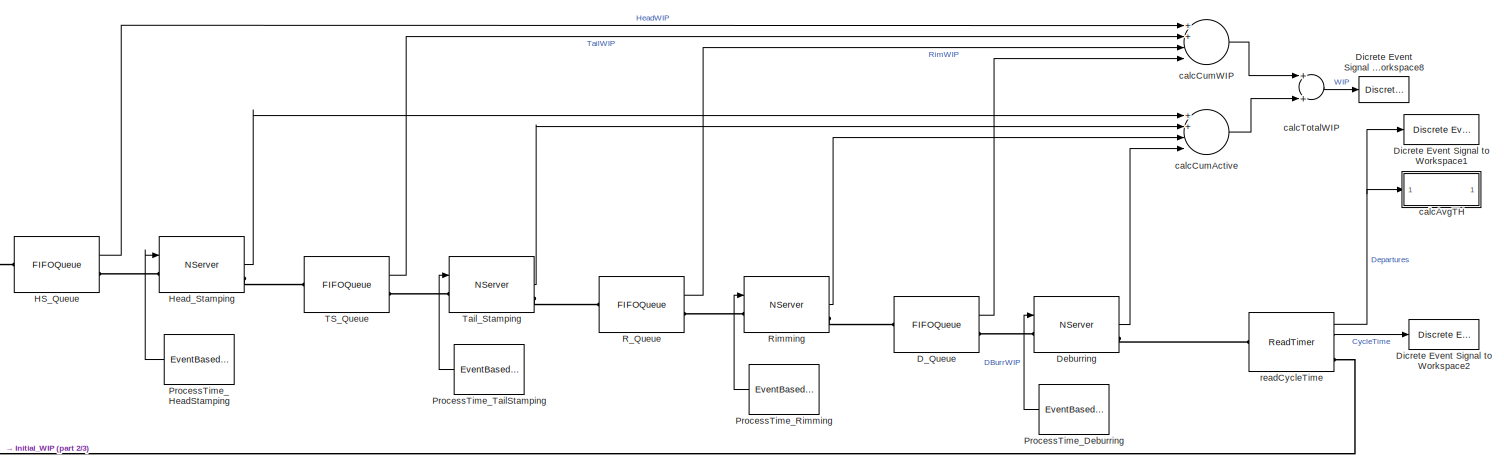
[diagram: root canvas - part 1/3, most of the canvas]
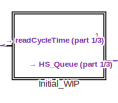
[diagram: root canvas - part 2/3, middle left region]
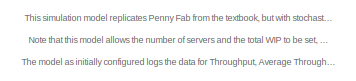
[diagram: root canvas - part 3/3, bottom left region]
MODEL slx_191b45a210a1
KIND model
CONFIG AbsTol = auto
CONFIG FixedStep = auto
CONFIG InitFcn = warning('off','all');
CONFIG MaxStep = auto
CONFIG MinStep = auto
CONFIG PostLoadFcn = set_param(gcs, 'Location', [75 0 1300 1000]);
CONFIG RelTol = 1e-3
CONFIG SampleTimeConstraint = Unconstrained
CONFIG Solver = VariableStepDiscrete
CONFIG SolverMode = Auto
CONFIG SolverName = VariableStepDiscrete
CONFIG StartFcn = warning('off','all');
CONFIG StartTime = 0.0
CONFIG StopTime = 10000
BLOCK [FIFOQueue] D_Queue
  Capacity = Inf
  OutputPortMap = o1
  Ports = [0, 1, 0, 0, 0, 1, 1]
  StatNumberInBlock = on
BLOCK [NServer] Deburring
  InputPortMap = u0
  NumberOfServers = 2
  OutputPortMap = o0,o1
  Ports = [1, 2, 0, 0, 0, 1, 1]
  ServiceTime = 2
  ServiceTimeFrom = Signal port t
  StatNumberDeparted = on
  StatNumberInBlock = on
BLOCK [Reference] Dicrete Event Signal to Workspace1  REF=simeventslib/SimEvents
Sinks/Discrete Event Signal
to Workspace
  Decimation = 1
  MaxDataPoints = inf
  Ports = [1]
  SaveFormat = Structure With Time
  SourceBlock = simeventslib/SimEvents\nSinks/Discrete Event Signal\nto Workspace
  SourceType = Discrete Event Signal to Workspace
  VariableName = Departures
  isMonitorOnly = off
  isRecordIC = off
BLOCK [Reference] Dicrete Event Signal to Workspace2  REF=simeventslib/SimEvents
Sinks/Discrete Event Signal
to Workspace
  Decimation = 1
  MaxDataPoints = inf
  Ports = [1]
  SaveFormat = Structure With Time
  SourceBlock = simeventslib/SimEvents\nSinks/Discrete Event Signal\nto Workspace
  SourceType = Discrete Event Signal to Workspace
  VariableName = CycleTime
  isMonitorOnly = off
  isRecordIC = off
BLOCK [Reference] Dicrete Event Signal to Workspace8  REF=simeventslib/SimEvents
Sinks/Discrete Event Signal
to Workspace
  Decimation = 1
  MaxDataPoints = inf
  Ports = [1]
  SaveFormat = Structure With Time
  SourceBlock = simeventslib/SimEvents\nSinks/Discrete Event Signal\nto Workspace
  SourceType = Discrete Event Signal to Workspace
  VariableName = WIP
  isMonitorOnly = off
  isRecordIC = off
BLOCK [FIFOQueue] HS_Queue
  Capacity = Inf
  OutputPortMap = o1
  Ports = [0, 1, 0, 0, 0, 1, 1]
  StatNumberInBlock = on
BLOCK [NServer] Head_Stamping
  InputPortMap = u0
  NumberOfServers = 1
  OutputPortMap = o0,o1
  Ports = [1, 2, 0, 0, 0, 1, 1]
  ServiceChange = Force complete
  ServiceTimeFrom = Signal port t
  StatNumberDeparted = on
  StatNumberInBlock = on
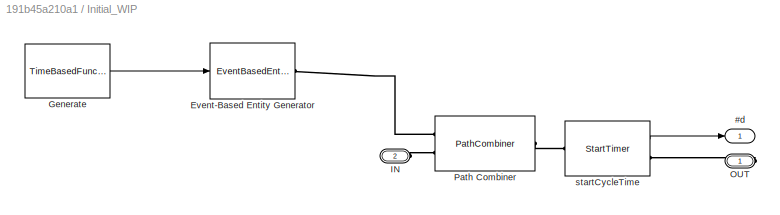
BLOCK [SubSystem] Initial_WIP
  Ports = [0, 1, 0, 0, 0, 1, 1]
  RequestExecContextInheritance = off
BLOCK [Outport] Initial_WIP/#d
  IconDisplay = Port number
BLOCK [EventBasedEntityGenerator] Initial_WIP/Event-Based Entity Generator
  GenerateEntitiesUpon = Function call from port fcn
  InputPortMap = u0
  Ports = [1, 0, 0, 0, 0, 0, 1]
BLOCK [TimeBasedFunctionCallGenerator] Initial_WIP/Generate
  EventGenerationMode = Only at simulation start
  NumberOfEventsPerPeriod = NumberOfEventsPerPeriod
  OutputPortMap = o0
  Ports = [0, 1]
BLOCK [PMIOPort] Initial_WIP/IN
  Port = 2
  Side = Left
BLOCK [PMIOPort] Initial_WIP/OUT
  Port = 1
  Side = Right
BLOCK [PathCombiner] Initial_WIP/Path Combiner
  NumberInputPorts = 2
  Ports = [0, 0, 0, 0, 0, 2, 1]
BLOCK [StartTimer] Initial_WIP/startCycleTime
  OutputPortMap = o0
  Ports = [0, 1, 0, 0, 0, 1, 1]
  StatNumberDeparted = on
  TimerStartedOption = Restart
  TimerTag = CycleTime
BLOCK [EventBasedRandomNumber] ProcessTime_Deburring
  OutputPortMap = o0
  Ports = [0, 1]
  Seed = 11082
  maxTri = 5.5
  meanExp = 3
  meanNorm = 3
  minTri = .5
  modeTri = 3
  stdNorm = 3
BLOCK [EventBasedRandomNumber] ProcessTime_HeadStamping
  OutputPortMap = o0
  Ports = [0, 1]
  Seed = 14299
  maxTri = 4.75
  meanExp = 2
  meanNorm = 2
  minTri = .25
  modeTri = 1
  stdNorm = .33
BLOCK [EventBasedRandomNumber] ProcessTime_Rimming
  OutputPortMap = o0
  Ports = [0, 1]
  Seed = 17516
  maxTri = 13
  meanExp = 10
  meanNorm = 10
  minTri = 7
  modeTri = 10
  stdNorm = 10
BLOCK [EventBasedRandomNumber] ProcessTime_TailStamping
  OutputPortMap = o0
  Ports = [0, 1]
  Seed = 20733
  maxTri = 8
  meanExp = 5
  meanNorm = 5
  minTri = 2
  modeTri = 5
  stdNorm = 5
BLOCK [FIFOQueue] R_Queue
  Capacity = Inf
  OutputPortMap = o1
  Ports = [0, 1, 0, 0, 0, 1, 1]
  StatNumberInBlock = on
BLOCK [NServer] Rimming
  InputPortMap = u0
  NumberOfServers = 6
  OutputPortMap = o0,o1
  Ports = [1, 2, 0, 0, 0, 1, 1]
  ServiceTime = 6
  ServiceTimeFrom = Signal port t
  StatNumberDeparted = on
  StatNumberInBlock = on
BLOCK [FIFOQueue] TS_Queue
  Capacity = Inf
  OutputPortMap = o1
  Ports = [0, 1, 0, 0, 0, 1, 1]
  StatNumberInBlock = on
BLOCK [NServer] Tail_Stamping
  InputPortMap = u0
  NumberOfServers = 2
  OutputPortMap = o0,o1
  Ports = [1, 2, 0, 0, 0, 1, 1]
  ServiceTime = 2
  ServiceTimeFrom = Signal port t
  StatNumberDeparted = on
  StatNumberInBlock = on
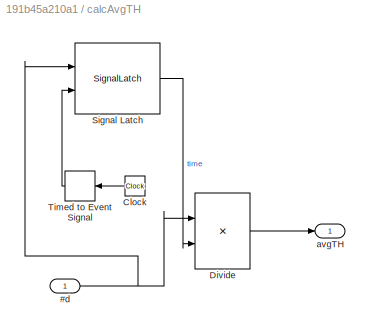
BLOCK [SubSystem] calcAvgTH
  Ports = [1, 1]
  RequestExecContextInheritance = off
BLOCK [Inport] calcAvgTH/#d
  IconDisplay = Port number
BLOCK [Clock] calcAvgTH/Clock
  Decimation = 1
  DisplayTime = on
BLOCK [Product] calcAvgTH/Divide
  InputSameDT = off
  Inputs = */
  OutDataTypeStr = Inherit: Inherit via internal rule
  Ports = [2, 1]
  RndMeth = Floor
  SaturateOnIntegerOverflow = off
BLOCK [SignalLatch] calcAvgTH/Signal Latch
  InputPortMap = u0,u2
  OutputPortMap = o2
  Ports = [2, 1]
  ReadMemoryUpon = Write to memory event
BLOCK [TimedToEventSignal] calcAvgTH/Timed to Event Signal
  InputPortMap = u0
  OutputPortMap = o0
  Ports = [1, 1]
BLOCK [Outport] calcAvgTH/avgTH
  IconDisplay = Port number
BLOCK [Sum] calcCumActive
  InputSameDT = off
  Inputs = 4
  OutDataTypeStr = Inherit: Inherit via internal rule
  Ports = [4, 1]
  SaturateOnIntegerOverflow = off
BLOCK [Sum] calcCumWIP
  InputSameDT = off
  Inputs = 4
  OutDataTypeStr = Inherit: Inherit via internal rule
  Ports = [4, 1]
  SaturateOnIntegerOverflow = off
BLOCK [Sum] calcTotalWIP
  InputSameDT = off
  Inputs = 2
  OutDataTypeStr = Inherit: Inherit via internal rule
  Ports = [2, 1]
  SaturateOnIntegerOverflow = off
BLOCK [ReadTimer] readCycleTime
  OutputPortMap = o0,o2,o3
  Ports = [0, 3, 0, 0, 0, 1, 1]
  StatAverageTimeElapsed = on
  StatNumberDeparted = on
  StatTimeElapsed = on
  TimerTag = CycleTime
ANNOTATION (root): This simulation model replicates Penny Fab from the textbook, but with stochastic process times. Note that this model allows the number of servers and the total WIP to be set, along with the specification of the random variables for the processing time at each station and the capacity of each Queue. So almost any 4-station, tandem queuing system can be simulated. The model as initially configured ...<+337ch>
LINE D_Queue:1 -> calcCumWIP:4
LINE Deburring:2 -> calcCumActive:4
LINE HS_Queue:1 -> calcCumWIP:1
LINE Head_Stamping:2 -> calcCumActive:1
LINE Initial_WIP/Generate:1 -> Initial_WIP/Event-Based Entity Generator:1
LINE Initial_WIP/startCycleTime:1 -> Initial_WIP/#d:1
LINE ProcessTime_Deburring:1 -> Deburring:1
LINE ProcessTime_HeadStamping:1 -> Head_Stamping:1
LINE ProcessTime_Rimming:1 -> Rimming:1
LINE ProcessTime_TailStamping:1 -> Tail_Stamping:1
LINE R_Queue:1 -> calcCumWIP:3
LINE Rimming:2 -> calcCumActive:3
LINE TS_Queue:1 -> calcCumWIP:2
LINE Tail_Stamping:2 -> calcCumActive:2
NET calcAvgTH/#d:1 -> calcAvgTH/Divide:1, calcAvgTH/Signal Latch:1
LINE calcAvgTH/Clock:1 -> calcAvgTH/Timed to Event Signal:1
LINE calcAvgTH/Divide:1 -> calcAvgTH/avgTH:1
LINE calcAvgTH/Signal Latch:1 -> calcAvgTH/Divide:2
LINE calcAvgTH/Timed to Event Signal:1 -> calcAvgTH/Signal Latch:2
LINE calcCumActive:1 -> calcTotalWIP:2
LINE calcCumWIP:1 -> calcTotalWIP:1
LINE calcTotalWIP:1 -> Dicrete Event Signal to Workspace8:1
NET readCycleTime:1 -> Dicrete Event Signal to Workspace1:1, calcAvgTH:1
LINE readCycleTime:2 -> Dicrete Event Signal to Workspace2:1
PLINE D_Queue:LConn1 -- Rimming:RConn1
PLINE D_Queue:RConn1 -- Deburring:LConn1
PLINE Deburring:RConn1 -- readCycleTime:LConn1
PLINE HS_Queue:LConn1 -- Initial_WIP:RConn1
PLINE HS_Queue:RConn1 -- Head_Stamping:LConn1
PLINE Head_Stamping:RConn1 -- TS_Queue:LConn1
PLINE Initial_WIP/Event-Based Entity Generator:RConn1 -- Initial_WIP/Path Combiner:LConn1
PLINE Initial_WIP/IN:RConn1 -- Initial_WIP/Path Combiner:LConn2
PLINE Initial_WIP/OUT:RConn1 -- Initial_WIP/startCycleTime:RConn1
PLINE Initial_WIP/Path Combiner:RConn1 -- Initial_WIP/startCycleTime:LConn1
PLINE Initial_WIP:LConn1 -- readCycleTime:RConn1
PLINE R_Queue:LConn1 -- Tail_Stamping:RConn1
PLINE R_Queue:RConn1 -- Rimming:LConn1
PLINE TS_Queue:RConn1 -- Tail_Stamping:LConn1
note: NET lines group one-source signal fan-out (src -> all destinations, sorted); 1:1 wires keep LINE
